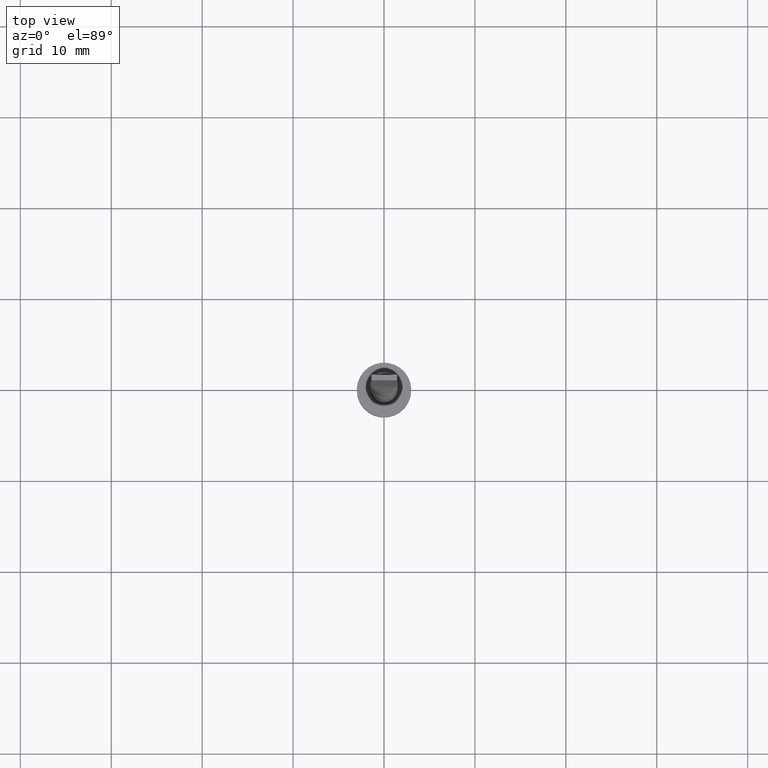
[diagram: clean part render]
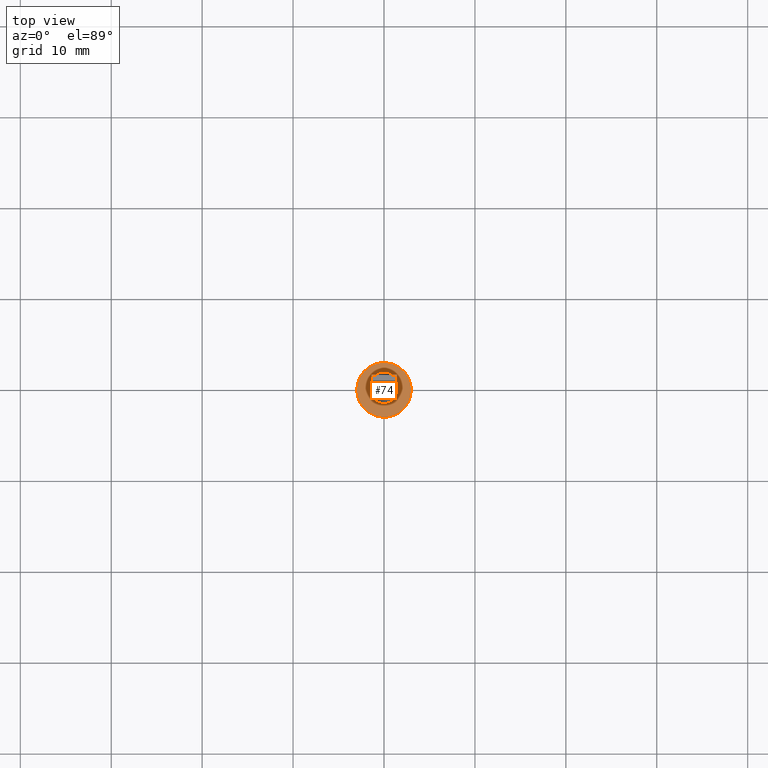
[diagram: same view with one face highlighted and labeled with its STEP entity id]
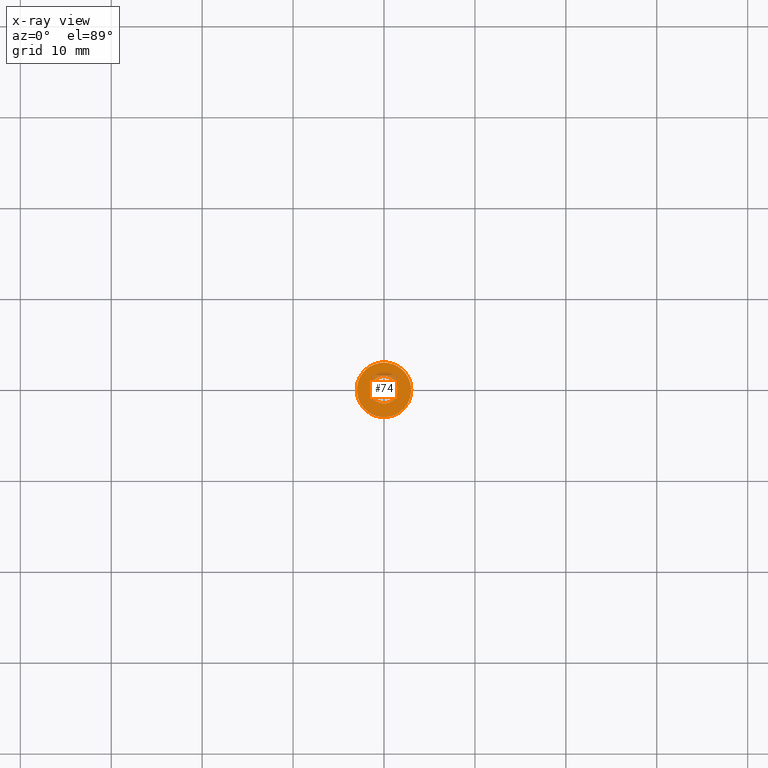
[diagram: x-ray of the same camera — body ghosted, the highlighted face saturated]
A machine part, top view. The second image highlights one B-rep face of the part: STEP entity #74.
The next image is the same camera in x-ray: the body ghosted, the highlighted face saturated — about 8% of this face is hidden behind the body in this view.
In plain terms, the highlighted planar face has unit normal (0, 0, 1).
Its self-contained STEP definition (entity closure, byte-faithful):
#14 = CIRCLE ( 'NONE', #216, 1.500000000000000222 ) ;
#61 = DIRECTION ( 'NONE',  ( 1.000000000000000000, 0.000000000000000000, 0.000000000000000000 ) ) ;
#73 = VERTEX_POINT ( 'NONE', #269 ) ;
#74 = ADVANCED_FACE ( 'NONE', ( #310, #75 ), #267, .T. ) ;
#75 = FACE_OUTER_BOUND ( 'NONE', #526, .T. ) ;
#84 = DIRECTION ( 'NONE',  ( 0.000000000000000000, 0.000000000000000000, 1.000000000000000000 ) ) ;
#89 = VERTEX_POINT ( 'NONE', #170 ) ;
#97 = DIRECTION ( 'NONE',  ( 0.000000000000000000, 0.000000000000000000, 1.000000000000000000 ) ) ;
#110 = EDGE_LOOP ( 'NONE', ( #330, #271 ) ) ;
#126 = DIRECTION ( 'NONE',  ( 0.000000000000000000, 0.000000000000000000, 1.000000000000000000 ) ) ;
#127 = DIRECTION ( 'NONE',  ( 1.000000000000000000, 0.000000000000000000, -0.000000000000000000 ) ) ;
#136 = EDGE_CURVE ( 'NONE', #171, #174, #275, .T. ) ;
#137 = AXIS2_PLACEMENT_3D ( 'NONE', #443, #84, #482 ) ;
#164 = EDGE_CURVE ( 'NONE', #73, #89, #475, .T. ) ;
#166 = CARTESIAN_POINT ( 'NONE',  ( 3.000000000000000444, 3.673940397442060361E-16, 3.000000000000000000 ) ) ;
#170 = CARTESIAN_POINT ( 'NONE',  ( 1.500000000000000222, 1.836970198721030181E-16, 3.000000000000000000 ) ) ;
#171 = VERTEX_POINT ( 'NONE', #439 ) ;
#174 = VERTEX_POINT ( 'NONE', #166 ) ;
#178 = ORIENTED_EDGE ( 'NONE', *, *, #318, .T. ) ;
#203 = CARTESIAN_POINT ( 'NONE',  ( 0.000000000000000000, 0.000000000000000000, 3.000000000000000000 ) ) ;
#210 = AXIS2_PLACEMENT_3D ( 'NONE', #395, #490, #127 ) ;
#216 = AXIS2_PLACEMENT_3D ( 'NONE', #234, #97, #61 ) ;
#234 = CARTESIAN_POINT ( 'NONE',  ( 0.000000000000000000, 0.000000000000000000, 3.000000000000000000 ) ) ;
#253 = ORIENTED_EDGE ( 'NONE', *, *, #136, .T. ) ;
#267 = PLANE ( 'NONE',  #210 ) ;
#269 = CARTESIAN_POINT ( 'NONE',  ( -1.500000000000000222, 0.000000000000000000, 3.000000000000000000 ) ) ;
#271 = ORIENTED_EDGE ( 'NONE', *, *, #349, .F. ) ;
#275 = CIRCLE ( 'NONE', #137, 3.000000000000000444 ) ;
#297 = AXIS2_PLACEMENT_3D ( 'NONE', #564, #126, #394 ) ;
#310 = FACE_BOUND ( 'NONE', #110, .T. ) ;
#318 = EDGE_CURVE ( 'NONE', #174, #171, #473, .T. ) ;
#330 = ORIENTED_EDGE ( 'NONE', *, *, #164, .F. ) ;
#349 = EDGE_CURVE ( 'NONE', #89, #73, #14, .T. ) ;
#368 = DIRECTION ( 'NONE',  ( 0.000000000000000000, 0.000000000000000000, 1.000000000000000000 ) ) ;
#378 = DIRECTION ( 'NONE',  ( 1.000000000000000000, 0.000000000000000000, 0.000000000000000000 ) ) ;
#394 = DIRECTION ( 'NONE',  ( 1.000000000000000000, 0.000000000000000000, 0.000000000000000000 ) ) ;
#395 = CARTESIAN_POINT ( 'NONE',  ( 0.000000000000000000, 0.000000000000000000, 3.000000000000000000 ) ) ;
#401 = AXIS2_PLACEMENT_3D ( 'NONE', #203, #368, #378 ) ;
#439 = CARTESIAN_POINT ( 'NONE',  ( -3.000000000000000444, 0.000000000000000000, 3.000000000000000000 ) ) ;
#443 = CARTESIAN_POINT ( 'NONE',  ( 0.000000000000000000, 0.000000000000000000, 3.000000000000000000 ) ) ;
#473 = CIRCLE ( 'NONE', #401, 3.000000000000000444 ) ;
#475 = CIRCLE ( 'NONE', #297, 1.500000000000000222 ) ;
#482 = DIRECTION ( 'NONE',  ( 1.000000000000000000, 0.000000000000000000, 0.000000000000000000 ) ) ;
#490 = DIRECTION ( 'NONE',  ( 0.000000000000000000, 0.000000000000000000, 1.000000000000000000 ) ) ;
#526 = EDGE_LOOP ( 'NONE', ( #253, #178 ) ) ;
#564 = CARTESIAN_POINT ( 'NONE',  ( 0.000000000000000000, 0.000000000000000000, 3.000000000000000000 ) ) ;